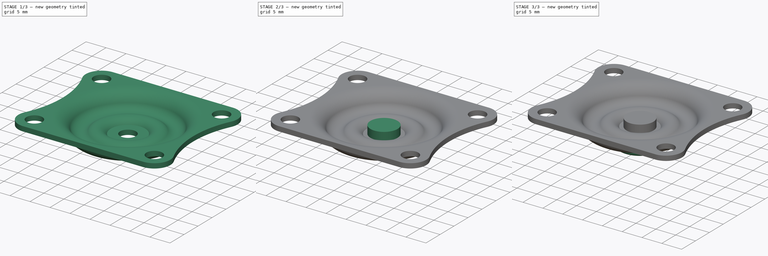
[diagram: build sequence overview — one tinted view per stage of 3, left to right]
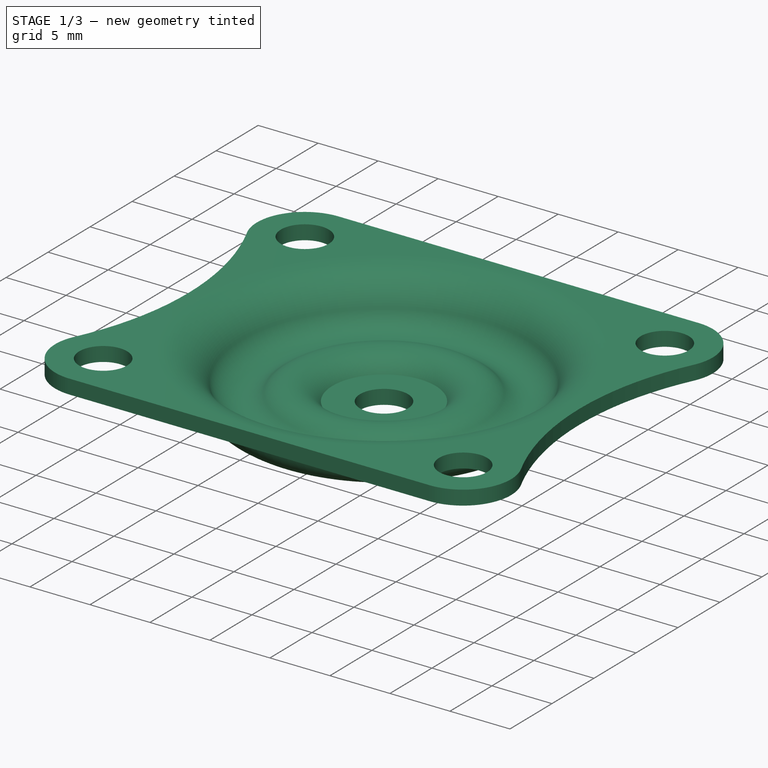
[diagram: stage 1 of 3 — iso view after this stage's code; geometry added in this stage tinted green]
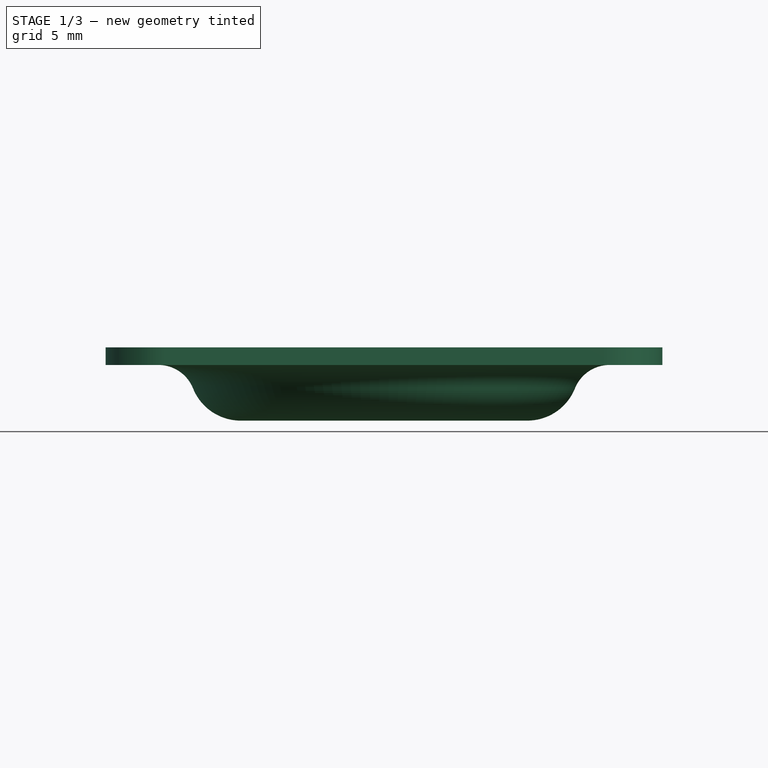
[diagram: stage 1 of 3 — front view after this stage's code; geometry added in this stage tinted green]
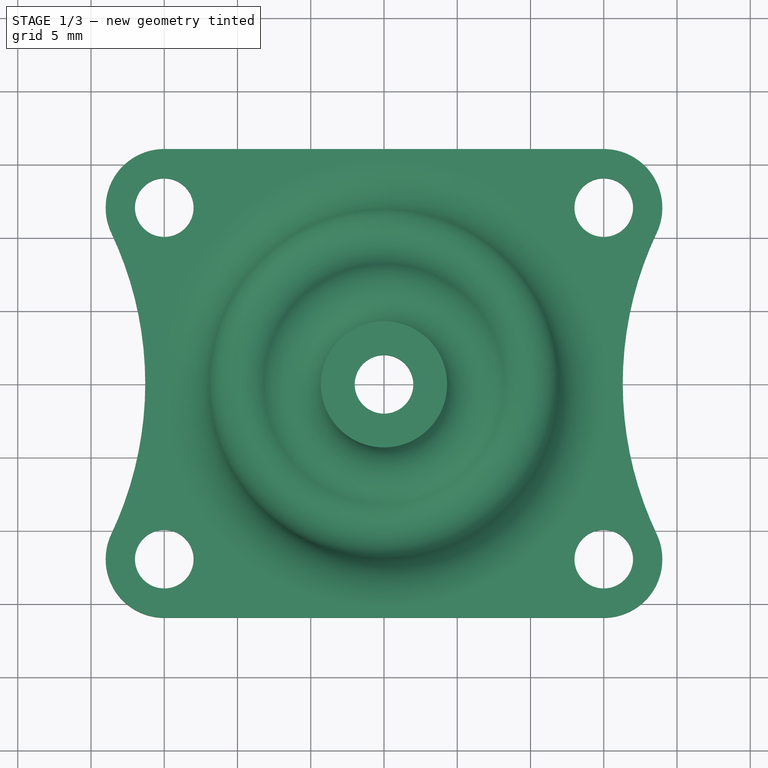
[diagram: stage 1 of 3 — top view after this stage's code; geometry added in this stage tinted green]
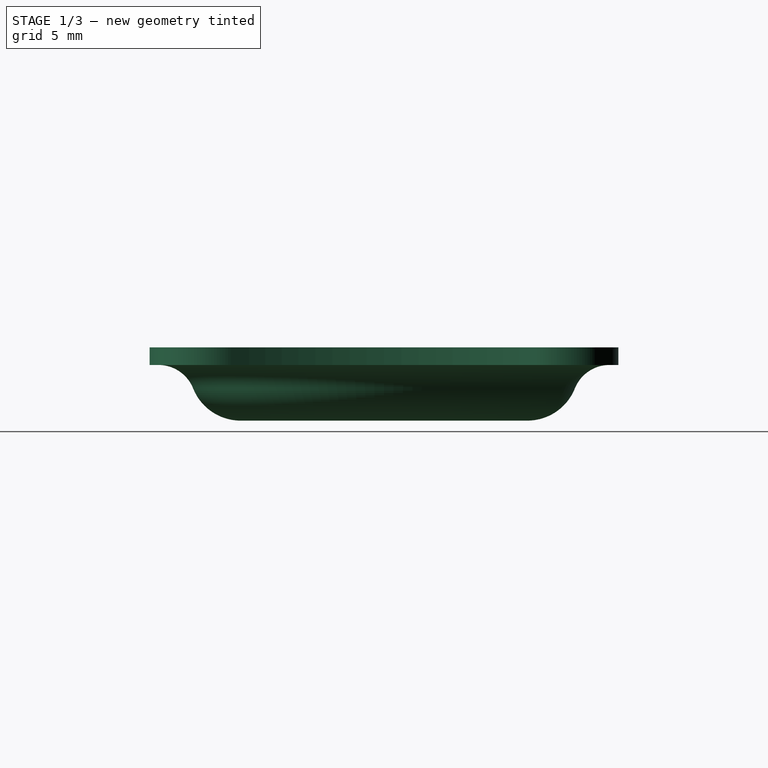
[diagram: stage 1 of 3 — right view after this stage's code; geometry added in this stage tinted green]
FCSTD DOCUMENT  (FreeCAD 0.17R13522 (Git))
Label: Caster-40mm_Swivel_plate
License: All rights reserved
LicenseURL: http://en.wikipedia.org/wiki/All_rights_reserved
objects: Sketcher::SketchObject×5, PartDesign::Pad×3, PartDesign::Pocket×2, PartDesign::Fillet×2, PartDesign::Revolution×1, PartDesign::Body×1
note: 20 computed .brp shape members not serialized (recipe doc carries the construction recipe); baked Part::Feature solids carry a one-line shape summary decoded from their .brp

FEATURE [Sketcher::SketchObject] Sketch
  MapMode = 5
  Placement = pos=(0,0,0) rot=(1,0,0;1.5708rad)
  Support = -> [XZ_Plane]
  sketch-geometry (12):
    g0: LineSegment StartX=2 StartY=0 StartZ=0 EndX=5.2 EndY=0 EndZ=0
    g1: ArcOfCircle CenterX=6.5 CenterY=0 CenterZ=0 NormalX=0 NormalY=0 NormalZ=1 AngleXU=0 Radius=1.3 StartAngle=0.817103 EndAngle=3.14159
    g2: ArcOfCircle CenterX=9.78481 CenterY=3.5 CenterZ=0 NormalX=0 NormalY=0 NormalZ=1 AngleXU=0 Radius=3.5 StartAngle=3.9587 EndAngle=5.90227
    g3: ArcOfCircle CenterX=15.4 CenterY=1.25127 CenterZ=0 NormalX=0 NormalY=0 NormalZ=1 AngleXU=0 Radius=2.54873 StartAngle=1.5708 EndAngle=2.76068
    g4: LineSegment StartX=15.4 StartY=3.8 StartZ=0 EndX=25 EndY=3.8 EndZ=0
    g5: LineSegment StartX=2 StartY=0 StartZ=0 EndX=2 EndY=1.2 EndZ=0
    g6: LineSegment StartX=2 StartY=1.2 StartZ=0 EndX=4.30683 EndY=1.2 EndZ=0
    g7: LineSegment StartX=25 StartY=3.8 StartZ=0 EndX=25 EndY=5 EndZ=0
    g8: LineSegment StartX=25 StartY=5 StartZ=0 EndX=15.4 EndY=5 EndZ=0
    g9: ArcOfCircle CenterX=6.5 CenterY=0 CenterZ=0 NormalX=0 NormalY=0 NormalZ=1 AngleXU=0 Radius=2.5 StartAngle=0.817103 EndAngle=2.64094
    g10: ArcOfCircle CenterX=9.78481 CenterY=3.5 CenterZ=0 NormalX=0 NormalY=0 NormalZ=1 AngleXU=0 Radius=2.3 StartAngle=3.9587 EndAngle=5.90227
    g11: ArcOfCircle CenterX=15.4 CenterY=1.25127 CenterZ=0 NormalX=0 NormalY=0 NormalZ=1 AngleXU=0 Radius=3.74873 StartAngle=1.5708 EndAngle=2.76068
  constraints (34):
    c: Horizontal(g0)
    c: PointOnObject(g0,g-1)
    c: DistanceX(g0) = 2
    c: DistanceX(g0,g0) = 3.2
    c: Coincident(g1,g0)
    c: Tangent(g-1,g2)
    c: Tangent(g3,g2) = 1.5708
    c: Tangent(g1,g2) = 1.5708
    c: Radius(g1) = 1.3
    c: Horizontal(g4)
    c: Tangent(g3,g4) = 1.5708
    c: DistanceX(g4) = 25
    c: DistanceY(g1,g4) = 3.8
    c: PointOnObject(g1,g-1)
    c: DistanceX(g3) = 15.4
    c: Radius(g2) = 3.5
    c: Coincident(g5,g6)
    c: Coincident(g7,g8)
    c: Horizontal(g8)
    c: Vertical(g7)
    c: DistanceY(g7,g7) = 1.2
    c: Vertical(g5)
    c: Equal(g5,g7)
    c: Horizontal(g6)
    c: Coincident(g9,g6)
    c: Tangent(g10,g9) = 1.5708
    c: Tangent(g11,g10) = 1.5708
    c: Coincident(g9,g1)
    c: Coincident(g0,g5)
    c: Coincident(g2,g10)
    c: Coincident(g3,g11)
    c: Radius(g10) = 2.3
    c: Tangent(g11,g8) = -1.5708
    c: DistanceX(g8,g8) = 9.6
FEATURE [PartDesign::Revolution] Revolution
  Angle = 360
  Axis = (0,0,1)
  Base = (0,0,0)
  Placement = pos=(0,0,0) rot=(1,0,0;1.5708rad)
  Profile = -> Sketch
  ReferenceAxis = -> Sketch [V_Axis]
  Reversed = true
FEATURE [Sketcher::SketchObject] Sketch001
  MapMode = 5
  Placement = pos=(0,0,5) rot=(0,0,1;3.14159rad)
  Support = -> [Revolution]
  sketch-geometry (17):
    g0: LineSegment [constr] StartX=-15 StartY=12 StartZ=0 EndX=15 EndY=12 EndZ=0
    g1: LineSegment [constr] StartX=15 StartY=12 StartZ=0 EndX=15 EndY=-12 EndZ=0
    g2: LineSegment [constr] StartX=15 StartY=-12 StartZ=0 EndX=-15 EndY=-12 EndZ=0
    g3: LineSegment [constr] StartX=-15 StartY=-12 StartZ=0 EndX=-15 EndY=12 EndZ=0
    g4: Circle [constr] CenterX=-15 CenterY=12 CenterZ=0 NormalX=0 NormalY=0 NormalZ=1 AngleXU=0 Radius=2
    g5: Circle [constr] CenterX=15 CenterY=12 CenterZ=0 NormalX=0 NormalY=0 NormalZ=1 AngleXU=0 Radius=2
    g6: Circle [constr] CenterX=-15 CenterY=-12 CenterZ=0 NormalX=0 NormalY=0 NormalZ=1 AngleXU=0 Radius=2
    g7: Circle [constr] CenterX=15 CenterY=-12 CenterZ=0 NormalX=0 NormalY=0 NormalZ=1 AngleXU=0 Radius=2
    g8: ArcOfCircle CenterX=-15 CenterY=12 CenterZ=0 NormalX=0 NormalY=0 NormalZ=1 AngleXU=0 Radius=4 StartAngle=1.5708 EndAngle=3.5845
    g9: ArcOfCircle CenterX=-15 CenterY=-12 CenterZ=0 NormalX=0 NormalY=0 NormalZ=1 AngleXU=0 Radius=4 StartAngle=2.69868 EndAngle=4.71239
    g10: ArcOfCircle CenterX=15 CenterY=-12 CenterZ=0 NormalX=0 NormalY=0 NormalZ=1 AngleXU=0 Radius=4 StartAngle=4.71239 EndAngle=6.7261
    g11: ArcOfCircle CenterX=15 CenterY=12 CenterZ=0 NormalX=0 NormalY=0 NormalZ=1 AngleXU=0 Radius=4 StartAngle=5.84027 EndAngle=7.85398
    g12: LineSegment StartX=-15 StartY=16 StartZ=0 EndX=15 EndY=16 EndZ=0
    g13: LineSegment StartX=-15 StartY=-16 StartZ=0 EndX=15 EndY=-16 EndZ=0
    g14: ArcOfCircle CenterX=-40.2982 CenterY=0 CenterZ=0 NormalX=0 NormalY=0 NormalZ=1 AngleXU=0 Radius=24 StartAngle=5.84027 EndAngle=6.7261
    g15: ArcOfCircle CenterX=40.2982 CenterY=0 CenterZ=0 NormalX=0 NormalY=0 NormalZ=1 AngleXU=0 Radius=24 StartAngle=2.69868 EndAngle=3.5845
    g16: Circle CenterX=0 CenterY=0 CenterZ=0 NormalX=0 NormalY=0 NormalZ=1 AngleXU=0 Radius=28
  constraints (40):
    c: Coincident(g0,g1)
    c: Coincident(g1,g2)
    c: Coincident(g2,g3)
    c: Coincident(g3,g0)
    c: Horizontal(g0)
    c: Horizontal(g2)
    c: Vertical(g1)
    c: Vertical(g3)
    c: Symmetric(g0,g0,g-2)
    c: Symmetric(g0,g1,g-1)
    c: DistanceY(g3,g3) = 24
    c: DistanceX(g0,g0) = 30
    c: Equal(g4,g6)
    c: Equal(g6,g5)
    c: Equal(g5,g7)
    c: Radius(g4) = 2
    c: Coincident(g0,g4)
    c: Coincident(g6,g2)
    c: Coincident(g7,g1)
    c: Coincident(g5,g0)
    c: Equal(g8,g11)
    c: Equal(g11,g9)
    c: Equal(g9,g10)
    c: Coincident(g9,g2)
    c: Coincident(g1,g10)
    c: Coincident(g0,g11)
    c: Coincident(g8,g0)
    c: Radius(g8) = 4
    c: Horizontal(g13)
    c: Tangent(g10,g13) = -1.5708
    c: Tangent(g13,g9) = -1.5708
    c: Tangent(g12,g11) = 1.5708
    c: Tangent(g12,g8) = 1.5708
    c: Tangent(g11,g15) = 1.5708
    c: Tangent(g10,g15) = 1.5708
    c: Tangent(g8,g14) = 1.5708
    c: Tangent(g9,g14) = 1.5708
    c: Equal(g15,g14)
    c: Radius(g15) = 24
    c: Radius(g16) = 28
FEATURE [PartDesign::Pocket] Pocket
  BaseFeature = -> Revolution
  Length = 5
  Length2 = 100
  Placement = pos=(0,0,0) rot=(1,0,0;1.5708rad)
  Profile = -> Sketch001
  Type = 1
FEATURE [Sketcher::SketchObject] Sketch003
  MapMode = 5
  Placement = pos=(0,-1e-12,5) rot=(0,0,1;3.14159rad)
  sketch-geometry (8):
    g0: LineSegment [constr] StartX=-15 StartY=12 StartZ=0 EndX=15 EndY=12 EndZ=0
    g1: LineSegment [constr] StartX=15 StartY=12 StartZ=0 EndX=15 EndY=-12 EndZ=0
    g2: LineSegment [constr] StartX=15 StartY=-12 StartZ=0 EndX=-15 EndY=-12 EndZ=0
    g3: LineSegment [constr] StartX=-15 StartY=-12 StartZ=0 EndX=-15 EndY=12 EndZ=0
    g4: Circle CenterX=-15 CenterY=12 CenterZ=0 NormalX=0 NormalY=0 NormalZ=1 AngleXU=0 Radius=2
    g5: Circle CenterX=15 CenterY=12 CenterZ=0 NormalX=0 NormalY=0 NormalZ=1 AngleXU=0 Radius=2
    g6: Circle CenterX=-15 CenterY=-12 CenterZ=0 NormalX=0 NormalY=0 NormalZ=1 AngleXU=0 Radius=2
    g7: Circle CenterX=15 CenterY=-12 CenterZ=0 NormalX=0 NormalY=0 NormalZ=1 AngleXU=0 Radius=2
  constraints (20):
    c: Coincident(g0,g1)
    c: Coincident(g1,g2)
    c: Coincident(g2,g3)
    c: Coincident(g3,g0)
    c: Horizontal(g0)
    c: Horizontal(g2)
    c: Vertical(g1)
    c: Vertical(g3)
    c: Symmetric(g0,g0,g-2)
    c: Symmetric(g0,g1,g-1)
    c: DistanceY(g3,g3) = 24
    c: DistanceX(g0,g0) = 30
    c: Equal(g4,g6)
    c: Equal(g6,g5)
    c: Equal(g5,g7)
    c: Radius(g4) = 2
    c: Coincident(g0,g4)
    c: Coincident(g6,g2)
    c: Coincident(g7,g1)
    c: Coincident(g5,g0)
FEATURE [PartDesign::Pocket] Pocket001
  BaseFeature = -> Pocket
  Length = 5
  Length2 = 100
  Placement = pos=(0,0,0) rot=(1,0,0;1.5708rad)
  Profile = -> Sketch003
  Type = 1
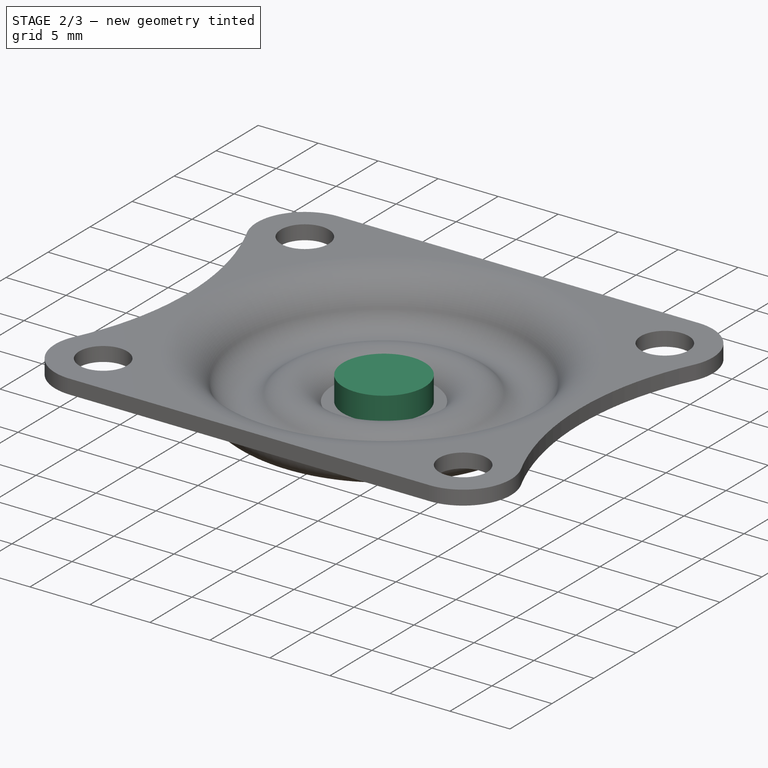
[diagram: stage 2 of 3 — iso view after this stage's code; geometry added in this stage tinted green]
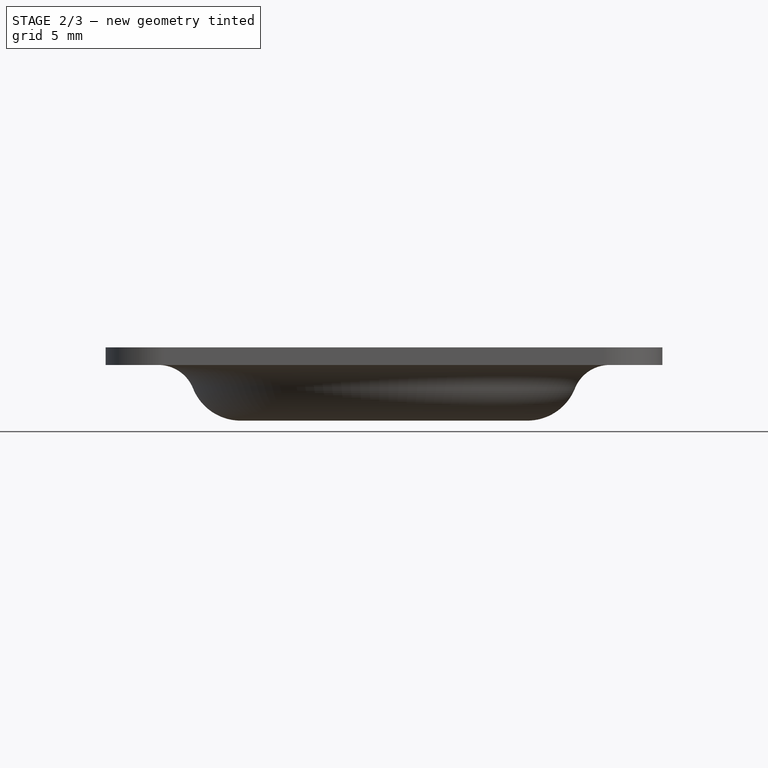
[diagram: stage 2 of 3 — front view after this stage's code; geometry added in this stage tinted green]
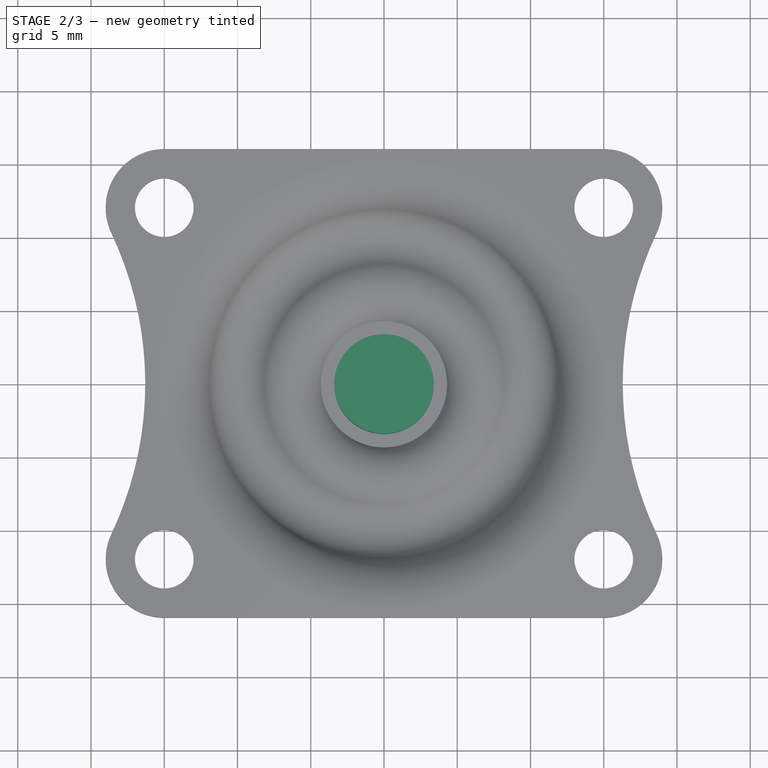
[diagram: stage 2 of 3 — top view after this stage's code; geometry added in this stage tinted green]
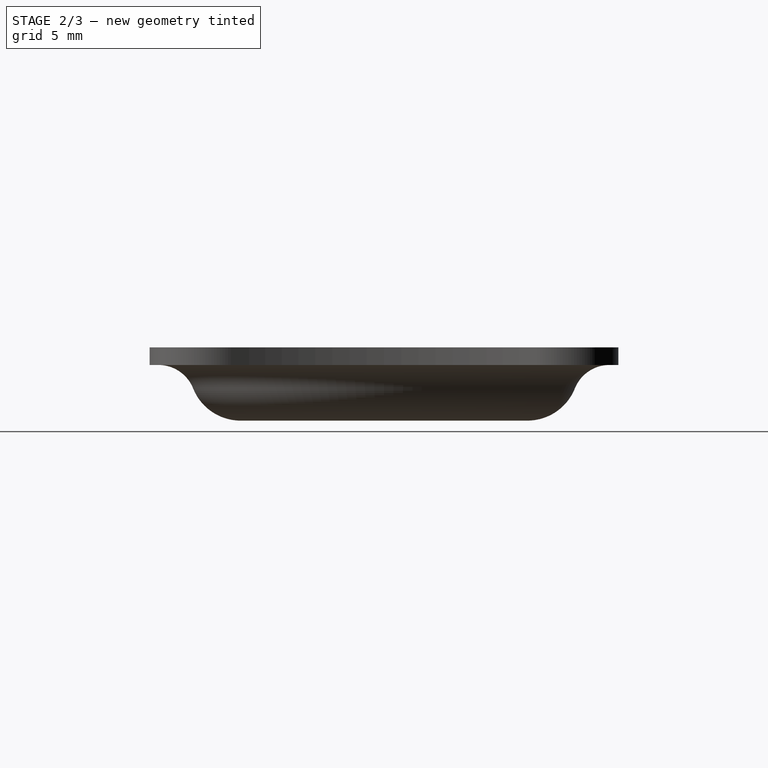
[diagram: stage 2 of 3 — right view after this stage's code; geometry added in this stage tinted green]
FEATURE [PartDesign::Fillet] Fillet
  Base = -> Pocket001 [Edge2]
  BaseFeature = -> Pocket001
  Placement = pos=(0,0,0) rot=(1,0,0;1.5708rad)
  Radius = 1
FEATURE [Sketcher::SketchObject] Sketch004
  MapMode = 5
  Placement = pos=(0,0,1.2) rot=(0,0,1;3.14159rad)
  Support = -> [Fillet]
  sketch-geometry (1):
    g0: Circle CenterX=0 CenterY=0 CenterZ=0 NormalX=0 NormalY=0 NormalZ=1 AngleXU=0 Radius=3.4
  constraints (2):
    c: Radius(g0) = 3.4
    c: Coincident(g-1,g0)
FEATURE [PartDesign::Pad] Pad
  BaseFeature = -> Fillet
  Length = 2
  Length2 = 100
  Placement = pos=(0,0,0) rot=(1,0,0;1.5708rad)
  Profile = -> Sketch004
  Type = 0
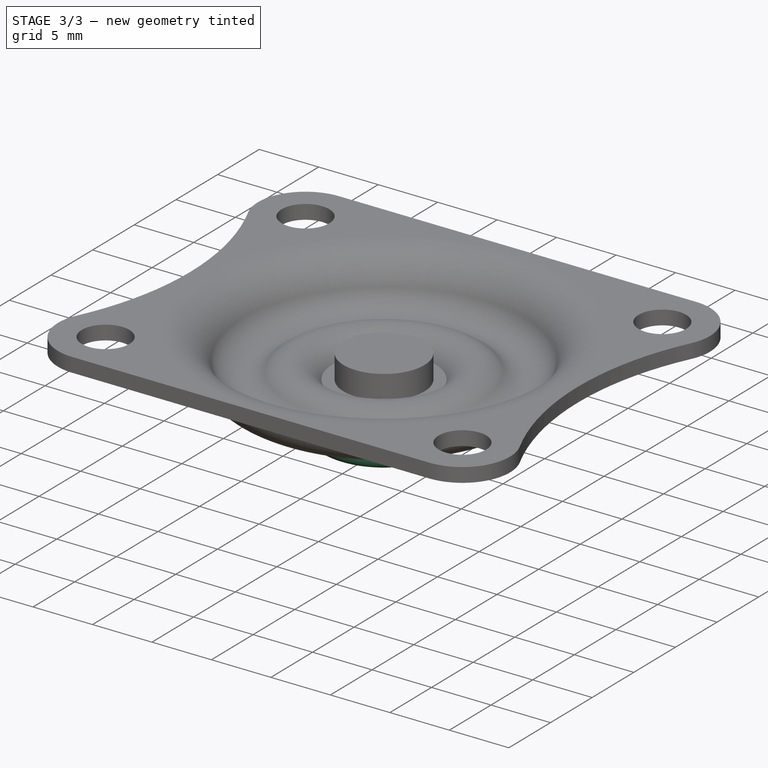
[diagram: stage 3 of 3 — iso view after this stage's code; geometry added in this stage tinted green]
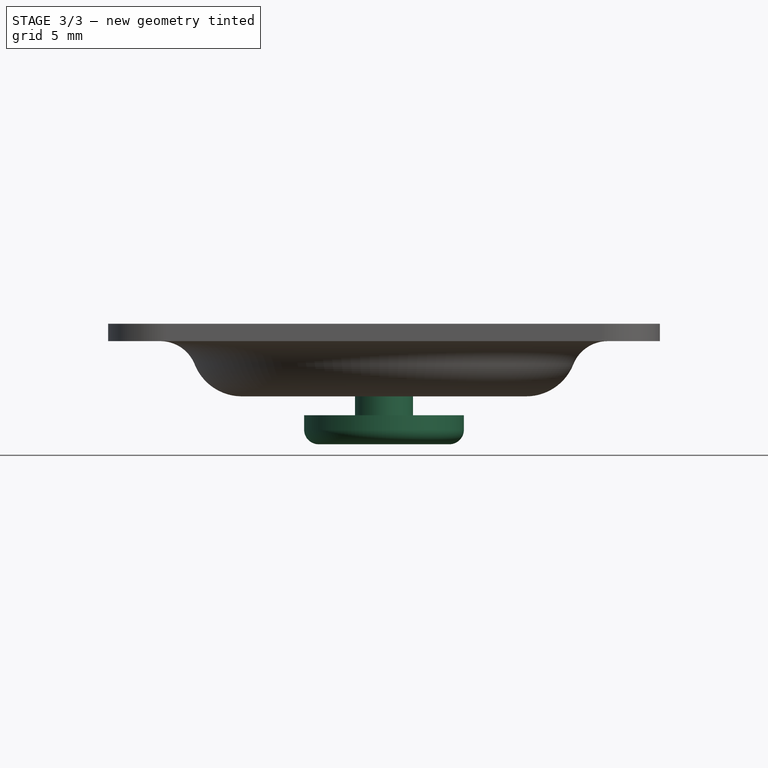
[diagram: stage 3 of 3 — front view after this stage's code; geometry added in this stage tinted green]
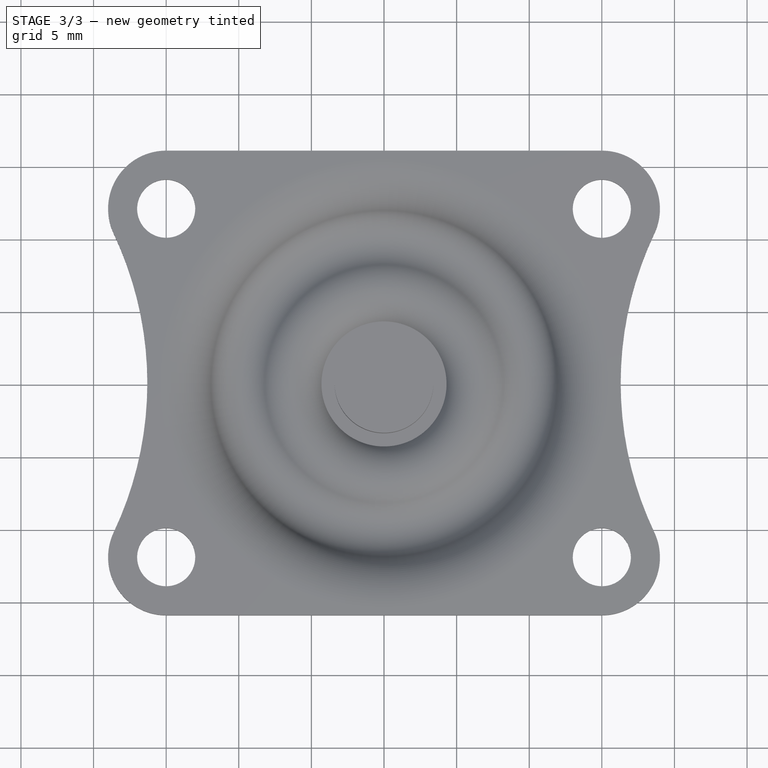
[diagram: stage 3 of 3 — top view after this stage's code; geometry added in this stage tinted green]
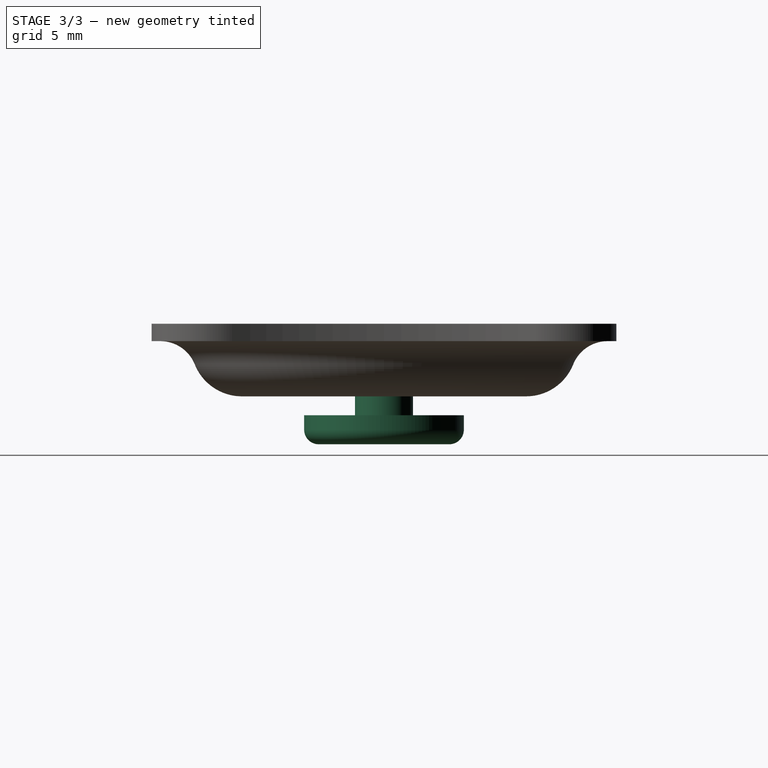
[diagram: stage 3 of 3 — right view after this stage's code; geometry added in this stage tinted green]
FEATURE [PartDesign::Pad] Pad001
  BaseFeature = -> Pad
  Length = 2.5
  Length2 = 100
  Placement = pos=(0,0,0) rot=(1,0,0;1.5708rad)
  Profile = -> Pad [Face5]
  Type = 0
FEATURE [Sketcher::SketchObject] Sketch005
  MapMode = 5
  Placement = pos=(0,0,-1.3) rot=(1,0,0;3.14159rad)
  Support = -> [Pad001]
  sketch-geometry (1):
    g0: Circle CenterX=0 CenterY=0 CenterZ=0 NormalX=0 NormalY=0 NormalZ=1 AngleXU=0 Radius=5.5
  constraints (2):
    c: Radius(g0) = 5.5
    c: Coincident(g-1,g0)
FEATURE [PartDesign::Pad] Pad002
  BaseFeature = -> Pad001
  Length = 2
  Length2 = 100
  Placement = pos=(0,0,0) rot=(1,0,0;1.5708rad)
  Profile = -> Sketch005
  Type = 0
FEATURE [PartDesign::Fillet] Fillet001
  Base = -> Pad002 [Edge15]
  BaseFeature = -> Pad002
  Placement = pos=(0,0,0) rot=(1,0,0;1.5708rad)
  Radius = 1
FEATURE [PartDesign::Body] Body
  Group = -> [Sketch,Revolution,Sketch001,Pocket,Sketch003,Pocket001,Fillet,Sketch004,Pad,Pad001,Sketch005,Pad002,Fillet001]
  Origin = -> Origin
  Tip = -> Fillet001
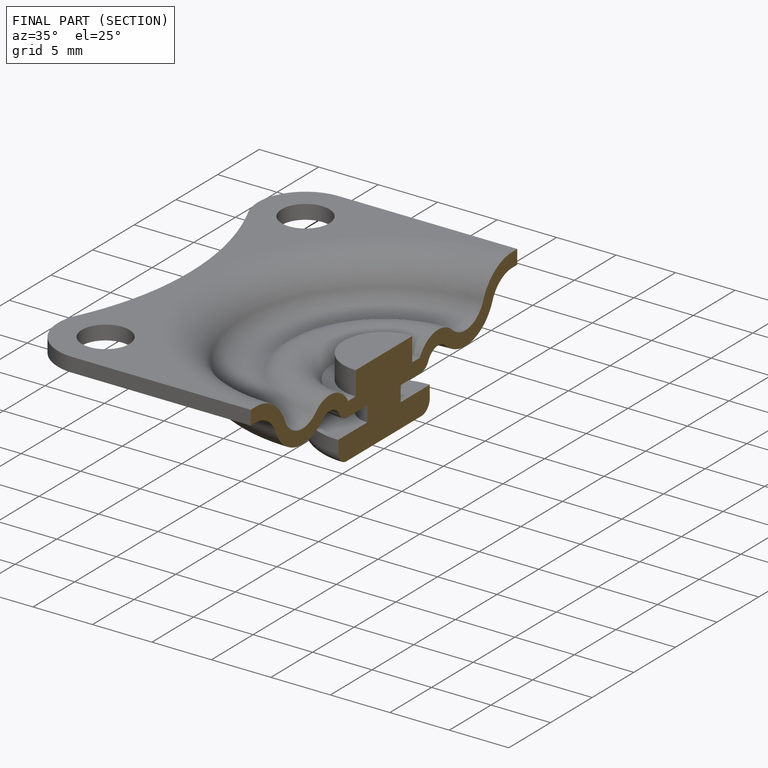
[diagram: finished part — half-section view (interior)]
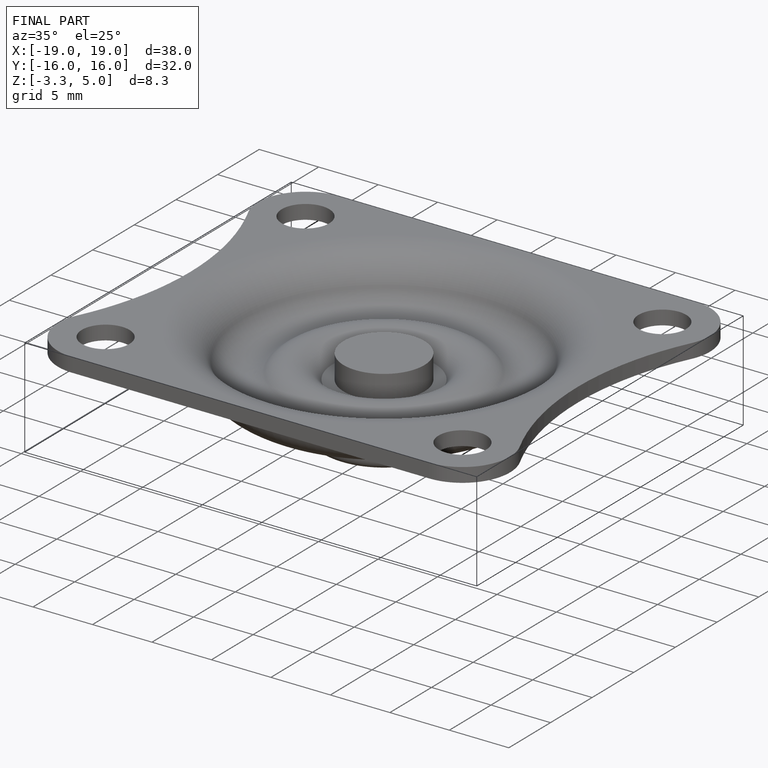
[diagram: finished part — iso view with bounding-box wireframe]
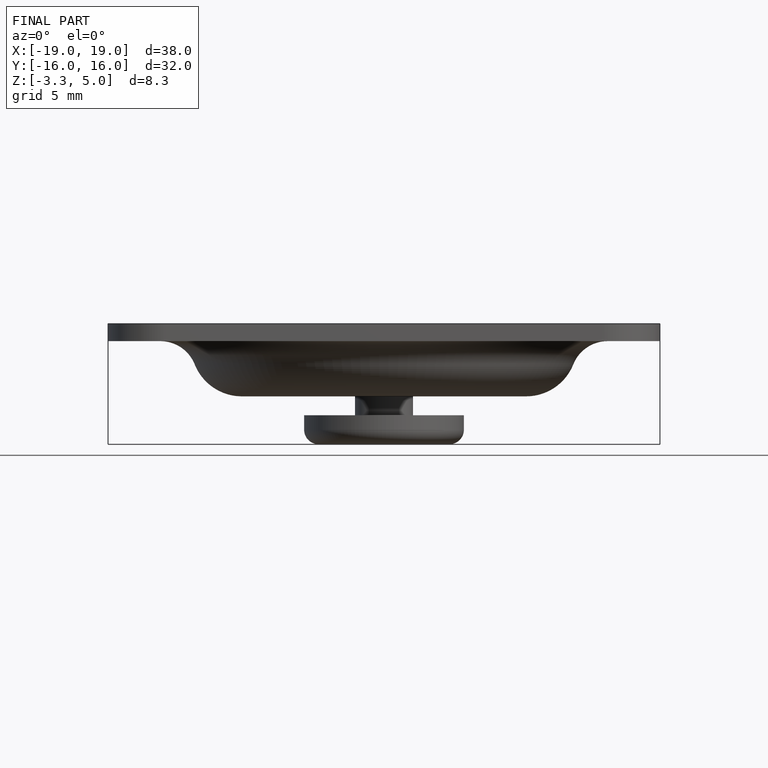
[diagram: finished part — front view with bounding-box wireframe]
